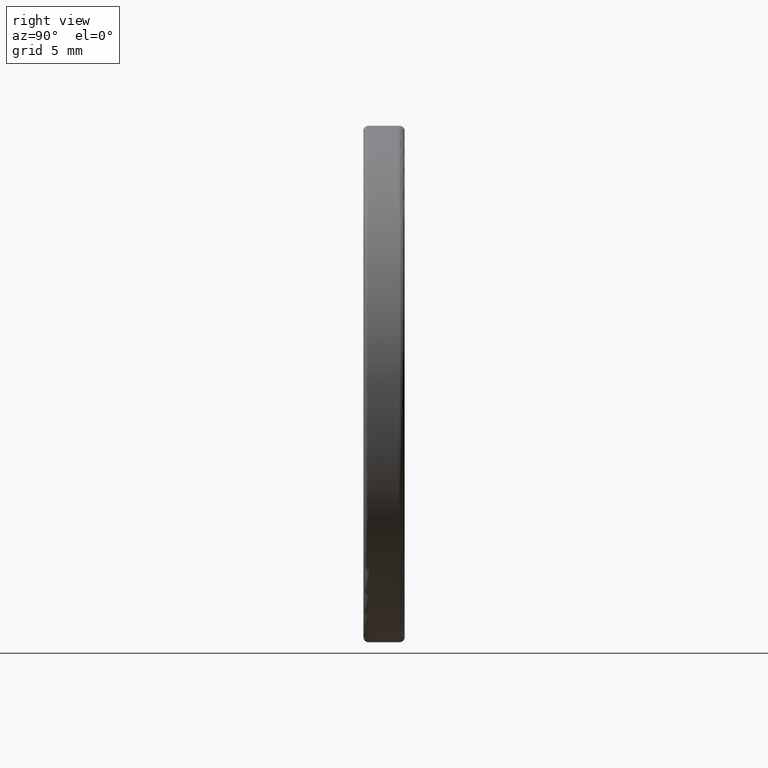
[diagram: clean part render]
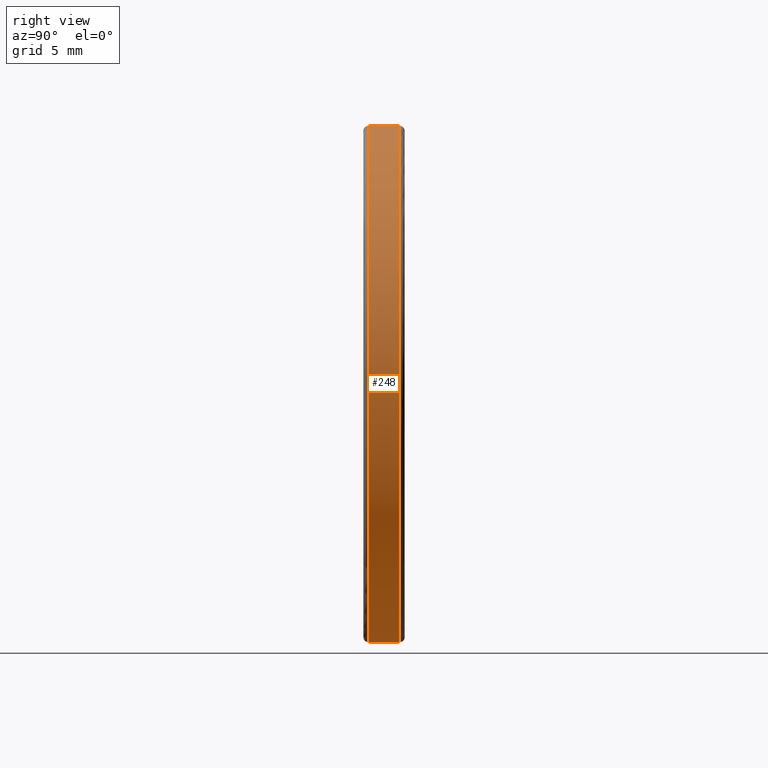
[diagram: same view with one face highlighted and labeled with its STEP entity id]
A machine part, right view. The second image highlights one B-rep face of the part: STEP entity #248.
In plain terms, the highlighted cylindrical surface (partial cylindrical patch) has radius 12.5 mm, axis along (-0, -1, -0).
Its self-contained STEP definition (entity closure, byte-faithful):
#33 = CARTESIAN_POINT ( 'NONE',  ( -4.682026255059962949, -0.8449759769982747581, 12.50000000000000000 ) ) ;
#38 = EDGE_CURVE ( 'NONE', #213, #472, #584, .T. ) ;
#43 = VECTOR ( 'NONE', #439, 1000.000000000000000 ) ;
#53 = AXIS2_PLACEMENT_3D ( 'NONE', #276, #533, #97 ) ;
#61 = EDGE_CURVE ( 'NONE', #317, #269, #291, .T. ) ;
#77 = FACE_OUTER_BOUND ( 'NONE', #474, .T. ) ;
#92 = EDGE_CURVE ( 'NONE', #213, #317, #155, .T. ) ;
#97 = DIRECTION ( 'NONE',  ( 0.0000000000000000000, 0.0000000000000000000, 1.000000000000000000 ) ) ;
#149 = CARTESIAN_POINT ( 'NONE',  ( -4.682026255059964726, -0.5949759769982747581, 12.50000000000000000 ) ) ;
#155 = CIRCLE ( 'NONE', #555, 12.50000000000000355 ) ;
#174 = CARTESIAN_POINT ( 'NONE',  ( -4.682026255059964726, -0.8449759769982747581, 37.50000000000000711 ) ) ;
#201 = CARTESIAN_POINT ( 'NONE',  ( -4.682026255059964726, -0.8449759769982747581, 25.00000000000000000 ) ) ;
#208 = ORIENTED_EDGE ( 'NONE', *, *, #376, .T. ) ;
#211 = DIRECTION ( 'NONE',  ( 0.0000000000000000000, 0.0000000000000000000, -1.000000000000000000 ) ) ;
#213 = VERTEX_POINT ( 'NONE', #33 ) ;
#245 = CARTESIAN_POINT ( 'NONE',  ( -4.682026255059964726, -2.344975976998274980, 12.50000000000000000 ) ) ;
#248 = ADVANCED_FACE ( 'NONE', ( #77 ), #504, .T. ) ;
#269 = VERTEX_POINT ( 'NONE', #449 ) ;
#273 = AXIS2_PLACEMENT_3D ( 'NONE', #443, #353, #211 ) ;
#276 = CARTESIAN_POINT ( 'NONE',  ( -4.682026255059964726, -2.344975976998274980, 25.00000000000000000 ) ) ;
#290 = DIRECTION ( 'NONE',  ( -0.0000000000000000000, -1.000000000000000000, -0.0000000000000000000 ) ) ;
#291 = LINE ( 'NONE', #481, #455 ) ;
#297 = DIRECTION ( 'NONE',  ( -0.0000000000000000000, -1.000000000000000000, -0.0000000000000000000 ) ) ;
#317 = VERTEX_POINT ( 'NONE', #174 ) ;
#349 = ORIENTED_EDGE ( 'NONE', *, *, #38, .F. ) ;
#353 = DIRECTION ( 'NONE',  ( -0.0000000000000000000, -1.000000000000000000, -0.0000000000000000000 ) ) ;
#376 = EDGE_CURVE ( 'NONE', #269, #472, #595, .T. ) ;
#439 = DIRECTION ( 'NONE',  ( -0.0000000000000000000, -1.000000000000000000, -0.0000000000000000000 ) ) ;
#443 = CARTESIAN_POINT ( 'NONE',  ( -4.682026255059964726, -0.5949759769982747581, 25.00000000000000000 ) ) ;
#444 = ORIENTED_EDGE ( 'NONE', *, *, #92, .T. ) ;
#449 = CARTESIAN_POINT ( 'NONE',  ( -4.682026255059962949, -2.344975976998274980, 37.50000000000000711 ) ) ;
#455 = VECTOR ( 'NONE', #297, 1000.000000000000000 ) ;
#472 = VERTEX_POINT ( 'NONE', #245 ) ;
#474 = EDGE_LOOP ( 'NONE', ( #444, #483, #208, #349 ) ) ;
#481 = CARTESIAN_POINT ( 'NONE',  ( -4.682026255059962949, -0.5949759769982747581, 37.50000000000000711 ) ) ;
#483 = ORIENTED_EDGE ( 'NONE', *, *, #61, .T. ) ;
#504 = CYLINDRICAL_SURFACE ( 'NONE', #273, 12.50000000000000000 ) ;
#533 = DIRECTION ( 'NONE',  ( 0.0000000000000000000, 1.000000000000000000, 0.0000000000000000000 ) ) ;
#542 = DIRECTION ( 'NONE',  ( 0.0000000000000000000, 0.0000000000000000000, 1.000000000000000000 ) ) ;
#555 = AXIS2_PLACEMENT_3D ( 'NONE', #201, #290, #542 ) ;
#584 = LINE ( 'NONE', #149, #43 ) ;
#595 = CIRCLE ( 'NONE', #53, 12.50000000000000355 ) ;